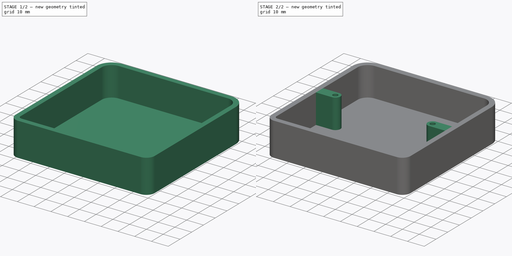
[diagram: build sequence overview — one tinted view per stage of 2, left to right]
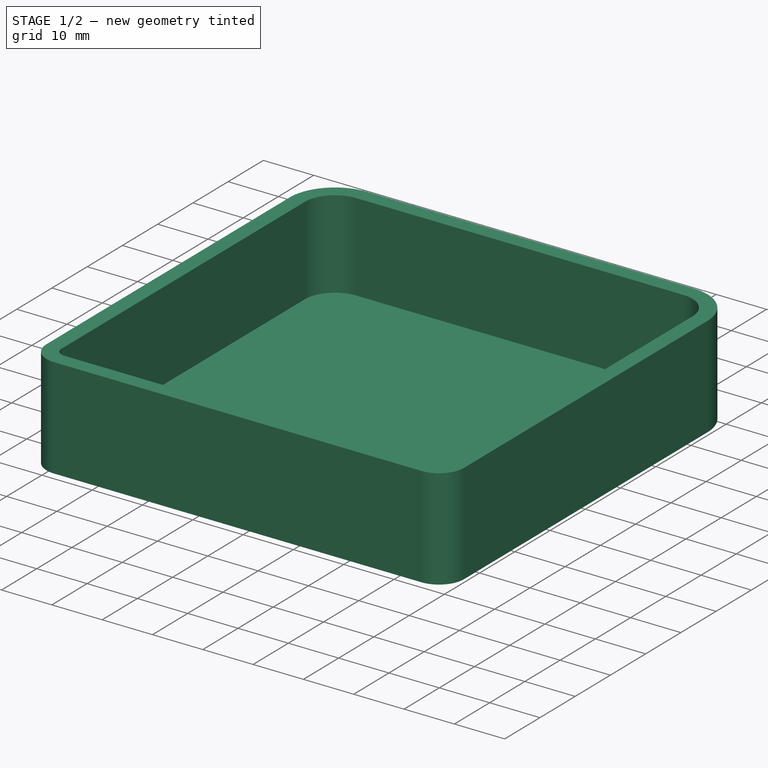
[diagram: stage 1 of 2 — iso view after this stage's code; geometry added in this stage tinted green]
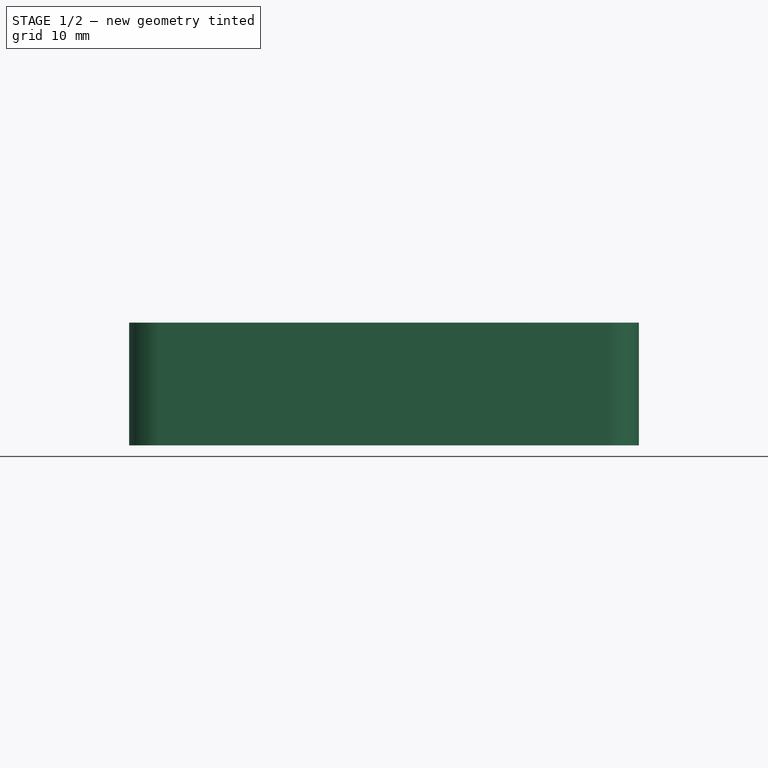
[diagram: stage 1 of 2 — front view after this stage's code; geometry added in this stage tinted green]
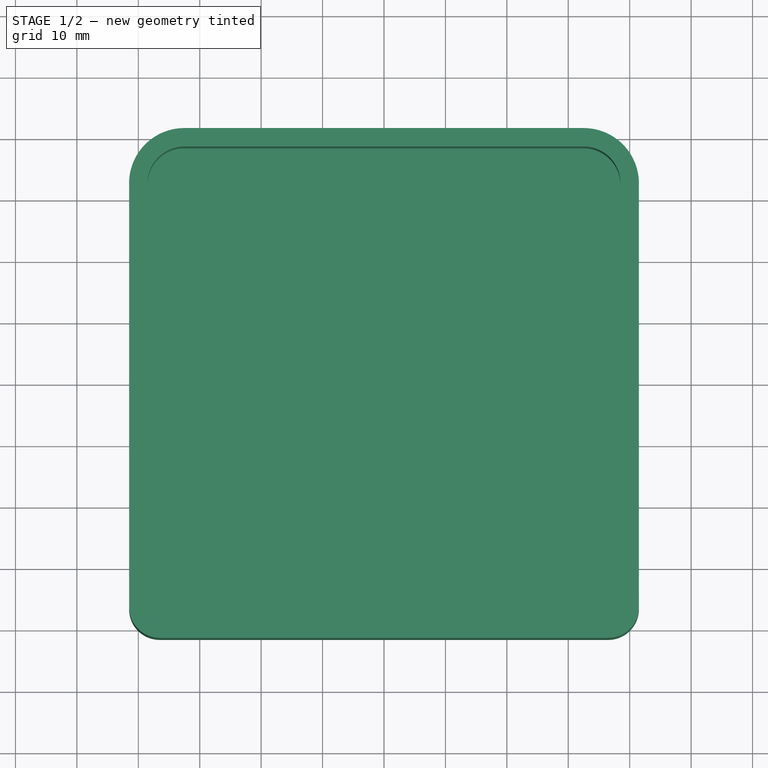
[diagram: stage 1 of 2 — top view after this stage's code; geometry added in this stage tinted green]
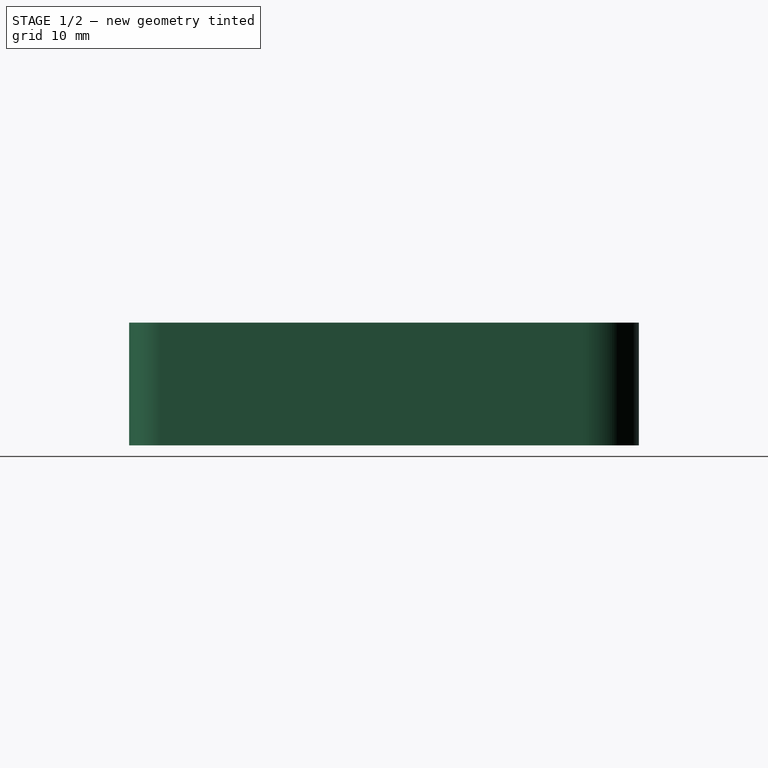
[diagram: stage 1 of 2 — right view after this stage's code; geometry added in this stage tinted green]
FCSTD DOCUMENT  (FreeCAD 1.1R)
Label: Cap
License: All rights reserved
LicenseURL: https://en.wikipedia.org/wiki/All_rights_reserved
objects: Sketcher::SketchObject×4, PartDesign::Pad×3, App::Point×2, PartDesign::Pocket×1, PartDesign::Body×1
note: 21 computed .brp shape members not serialized (recipe doc carries the construction recipe); baked Part::Feature solids carry a one-line shape summary decoded from their .brp

FEATURE [App::Point] Origin003
  Role = Origin
FEATURE [App::Point] Origin005
  Role = Origin
FEATURE [Sketcher::SketchObject] Sketch004
  ArcFitTolerance = 1e-06
  ExternalTypes = [0]
  FullyConstrained = true
  MakeInternals = false
  MapMode = 5
  sketch-geometry (12):
    g0: LineSegment StartX=-41.5 StartY=32.5 StartZ=0 EndX=-41.5 EndY=-36.5 EndZ=0
    g1: LineSegment StartX=-36.5 StartY=-41.5 StartZ=0 EndX=36.5 EndY=-41.5 EndZ=0
    g2: LineSegment StartX=41.5 StartY=-36.5 StartZ=0 EndX=41.5 EndY=32.5 EndZ=0
    g3: LineSegment StartX=32.5 StartY=41.5 StartZ=0 EndX=-32.5 EndY=41.5 EndZ=0
    g4: ArcOfCircle CenterX=-32.5 CenterY=32.5 CenterZ=0 NormalX=0 NormalY=0 NormalZ=1 AngleXU=0 Radius=9 StartAngle=1.5708 EndAngle=3.14159
    g5: GeomPoint [constr] X=-41.5 Y=41.5 Z=0
    g6: ArcOfCircle CenterX=32.5 CenterY=32.5 CenterZ=0 NormalX=0 NormalY=0 NormalZ=1 AngleXU=0 Radius=9 StartAngle=-1.377e-13 EndAngle=1.5708
    g7: GeomPoint [constr] X=41.5 Y=41.5 Z=0
    g8: ArcOfCircle CenterX=36.5 CenterY=-36.5 CenterZ=0 NormalX=0 NormalY=0 NormalZ=1 AngleXU=0 Radius=5 StartAngle=4.71239 EndAngle=6.28319
    g9: GeomPoint [constr] X=41.5 Y=-41.5 Z=0
    g10: ArcOfCircle CenterX=-36.5 CenterY=-36.5 CenterZ=0 NormalX=0 NormalY=0 NormalZ=1 AngleXU=0 Radius=5 StartAngle=3.14159 EndAngle=4.71239
    g11: GeomPoint [constr] X=-41.5 Y=-41.5 Z=0
  constraints (26):
    c: Vertical(g2)
    c: Horizontal(g3)
    c: Symmetric(g9,g11,g-2)
    c: Symmetric(g11,g5,g-1)
    c: DistanceY(g11,g5) = 83
    c: PointOnObject(g5,g0)
    c: PointOnObject(g5,g3)
    c: Tangent(g0,g4) = -1.5708
    c: Tangent(g3,g4) = -1.5708
    c: PointOnObject(g7,g2)
    c: PointOnObject(g7,g3)
    c: Tangent(g2,g6) = -1.5708
    c: Tangent(g3,g6) = -1.5708
    c: PointOnObject(g9,g1)
    c: PointOnObject(g9,g2)
    c: Tangent(g1,g8) = -1.5708
    c: Tangent(g2,g8) = -1.5708
    c: PointOnObject(g11,g0)
    c: PointOnObject(g11,g1)
    c: Tangent(g0,g10) = -1.5708
    c: Tangent(g1,g10) = -1.5708
    c: Distance(g2,g9) = 5
    c: DistanceX(g11,g9) = 83
    c: Horizontal(g10,g8)
    c: Distance(g2,g7) = 9
    c: Horizontal(g6,g4)
FEATURE [PartDesign::Pad] Pad001
  Direction = (0,0,1)
  Length = 2.5
  Length2 = 10
  Profile = -> Sketch004
  ReferenceAxis = -> Sketch004 [N_Axis]
  Refine = true
  SideType = 0
  Suppressed = false
  Type = 0
  Type2 = 0
FEATURE [Sketcher::SketchObject] Sketch
  ArcFitTolerance = 1e-06
  ExternalTypes = [0]
  FullyConstrained = true
  MakeInternals = false
  sketch-geometry (24):
    g0: LineSegment StartX=-41.5 StartY=32.5 StartZ=0 EndX=-41.5 EndY=-36.5 EndZ=0
    g1: LineSegment StartX=-36.5 StartY=-41.5 StartZ=0 EndX=36.5 EndY=-41.5 EndZ=0
    g2: LineSegment StartX=41.5 StartY=-36.5 StartZ=0 EndX=41.5 EndY=32.5 EndZ=0
    g3: LineSegment StartX=32.5 StartY=41.5 StartZ=0 EndX=-32.5 EndY=41.5 EndZ=0
    g4: ArcOfCircle CenterX=-32.5 CenterY=32.5 CenterZ=0 NormalX=0 NormalY=0 NormalZ=1 AngleXU=0 Radius=9 StartAngle=1.5708 EndAngle=3.14159
    g5: GeomPoint [constr] X=-41.5 Y=41.5 Z=0
    g6: ArcOfCircle CenterX=32.5 CenterY=32.5 CenterZ=0 NormalX=0 NormalY=0 NormalZ=1 AngleXU=0 Radius=9 StartAngle=-1.377e-13 EndAngle=1.5708
    g7: GeomPoint [constr] X=41.5 Y=41.5 Z=0
    g8: ArcOfCircle CenterX=36.5 CenterY=-36.5 CenterZ=0 NormalX=0 NormalY=0 NormalZ=1 AngleXU=0 Radius=5 StartAngle=4.71239 EndAngle=6.28319
    g9: GeomPoint [constr] X=41.5 Y=-41.5 Z=0
    g10: ArcOfCircle CenterX=-36.5 CenterY=-36.5 CenterZ=0 NormalX=0 NormalY=0 NormalZ=1 AngleXU=0 Radius=5 StartAngle=3.14159 EndAngle=4.71239
    g11: GeomPoint [constr] X=-41.5 Y=-41.5 Z=0
    g12: LineSegment StartX=-38.5 StartY=32.5 StartZ=0 EndX=-38.5 EndY=-36.5 EndZ=0
    g13: LineSegment StartX=-36.5 StartY=-38.5 StartZ=0 EndX=36.5 EndY=-38.5 EndZ=0
    g14: LineSegment StartX=38.5 StartY=-36.5 StartZ=0 EndX=38.5 EndY=32.5 EndZ=0
    g15: LineSegment StartX=32.5 StartY=38.5 StartZ=0 EndX=-32.5 EndY=38.5 EndZ=0
    g16: ArcOfCircle CenterX=-32.5 CenterY=32.5 CenterZ=0 NormalX=0 NormalY=0 NormalZ=1 AngleXU=0 Radius=6 StartAngle=1.5708 EndAngle=3.14159
    g17: GeomPoint [constr] X=-38.5 Y=38.5 Z=0
    g18: ArcOfCircle CenterX=32.5 CenterY=32.5 CenterZ=0 NormalX=0 NormalY=0 NormalZ=1 AngleXU=0 Radius=6 StartAngle=3e-16 EndAngle=1.5708
    g19: GeomPoint [constr] X=38.5 Y=38.5 Z=0
    g20: ArcOfCircle CenterX=36.5 CenterY=-36.5 CenterZ=0 NormalX=0 NormalY=0 NormalZ=1 AngleXU=0 Radius=2 StartAngle=4.71239 EndAngle=6.28319
    g21: GeomPoint [constr] X=38.5 Y=-38.5 Z=0
    g22: ArcOfCircle CenterX=-36.5 CenterY=-36.5 CenterZ=0 NormalX=0 NormalY=0 NormalZ=1 AngleXU=0 Radius=2 StartAngle=3.14159 EndAngle=4.71239
    g23: GeomPoint [constr] X=-38.5 Y=-38.5 Z=0
  constraints (52):
    c: Vertical(g2)
    c: Horizontal(g3)
    c: Symmetric(g9,g11,g-2)
    c: Symmetric(g11,g5,g-1)
    c: DistanceY(g11,g5) = 83
    c: PointOnObject(g5,g0)
    c: PointOnObject(g5,g3)
    c: Tangent(g0,g4) = -1.5708
    c: Tangent(g3,g4) = -1.5708
    c: PointOnObject(g7,g2)
    c: PointOnObject(g7,g3)
    c: Tangent(g2,g6) = -1.5708
    c: Tangent(g3,g6) = -1.5708
    c: PointOnObject(g9,g1)
    c: PointOnObject(g9,g2)
    c: Tangent(g1,g8) = -1.5708
    c: Tangent(g2,g8) = -1.5708
    c: PointOnObject(g11,g0)
    c: PointOnObject(g11,g1)
    c: Tangent(g0,g10) = -1.5708
    c: Tangent(g1,g10) = -1.5708
    c: Distance(g2,g9) = 5
    c: DistanceX(g11,g9) = 83
    c: Horizontal(g10,g8)
    c: Distance(g2,g7) = 9
    c: Horizontal(g6,g4)
    c: Vertical(g14)
    c: Horizontal(g15)
    c: Symmetric(g21,g23,g-2)
    c: Symmetric(g23,g17,g-1)
    c: DistanceY(g23,g17) = 77
    c: PointOnObject(g17,g12)
    c: PointOnObject(g17,g15)
    c: Tangent(g12,g16) = -1.5708
    c: Tangent(g15,g16) = -1.5708
    c: PointOnObject(g19,g14)
    c: PointOnObject(g19,g15)
    c: Tangent(g14,g18) = -1.5708
    c: Tangent(g15,g18) = -1.5708
    c: PointOnObject(g21,g13)
    c: PointOnObject(g21,g14)
    c: Tangent(g13,g20) = -1.5708
    c: Tangent(g14,g20) = -1.5708
    c: PointOnObject(g23,g12)
    c: PointOnObject(g23,g13)
    c: Tangent(g12,g22) = -1.5708
    c: Tangent(g13,g22) = -1.5708
    c: Distance(g14,g21) = 2
    c: DistanceX(g23,g21) = 77
    c: Horizontal(g22,g20)
    c: Distance(g14,g19) = 6
    c: Horizontal(g18,g16)
FEATURE [PartDesign::Pad] Pad
  BaseFeature = -> Pad001
  Direction = (0,0,1)
  Length = 20
  Length2 = 10
  Profile = -> Sketch
  ReferenceAxis = -> Sketch [N_Axis]
  Refine = true
  SideType = 0
  Suppressed = false
  Type = 0
  Type2 = 0
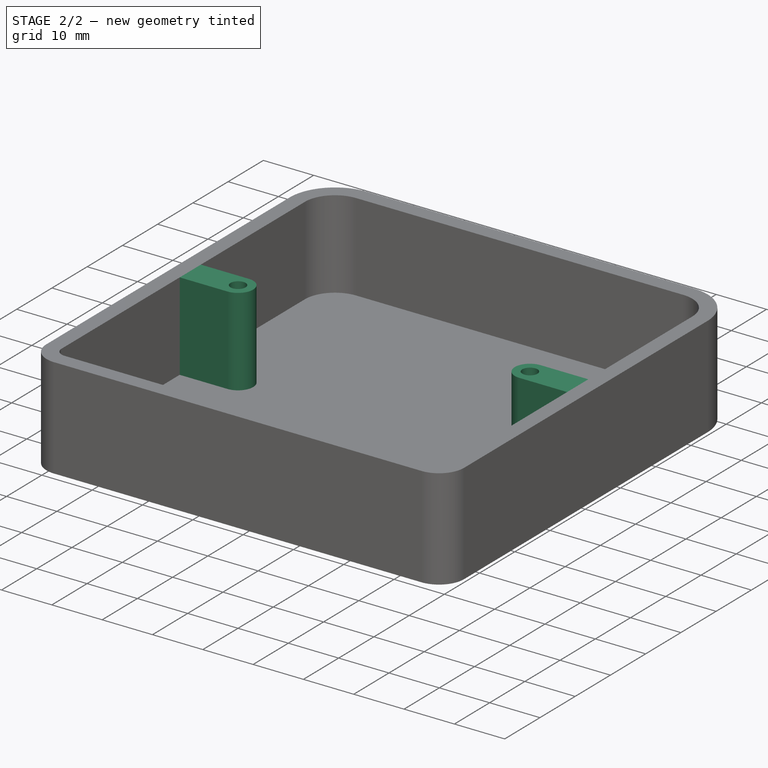
[diagram: stage 2 of 2 — iso view after this stage's code; geometry added in this stage tinted green]
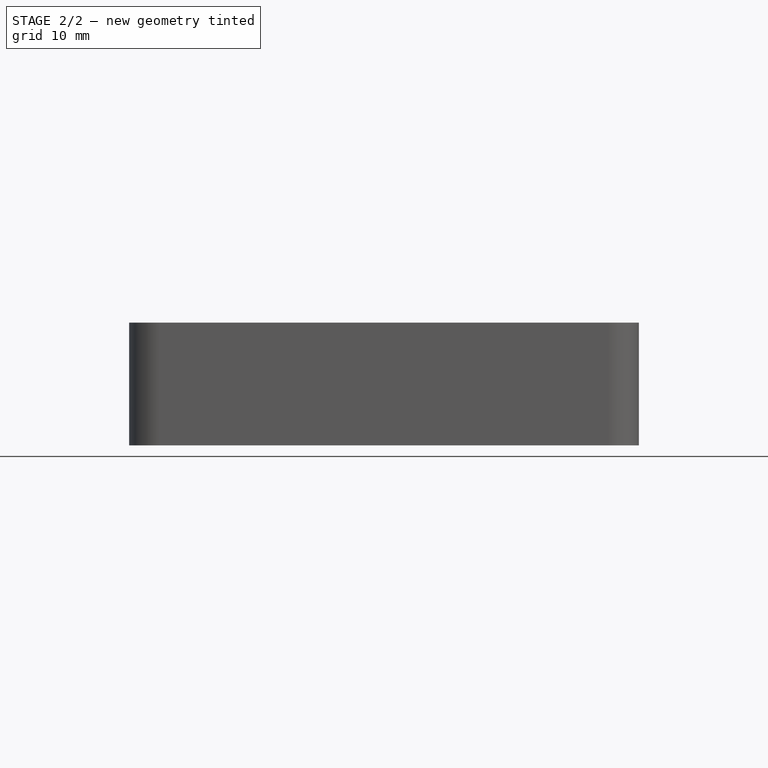
[diagram: stage 2 of 2 — front view after this stage's code; geometry added in this stage tinted green]
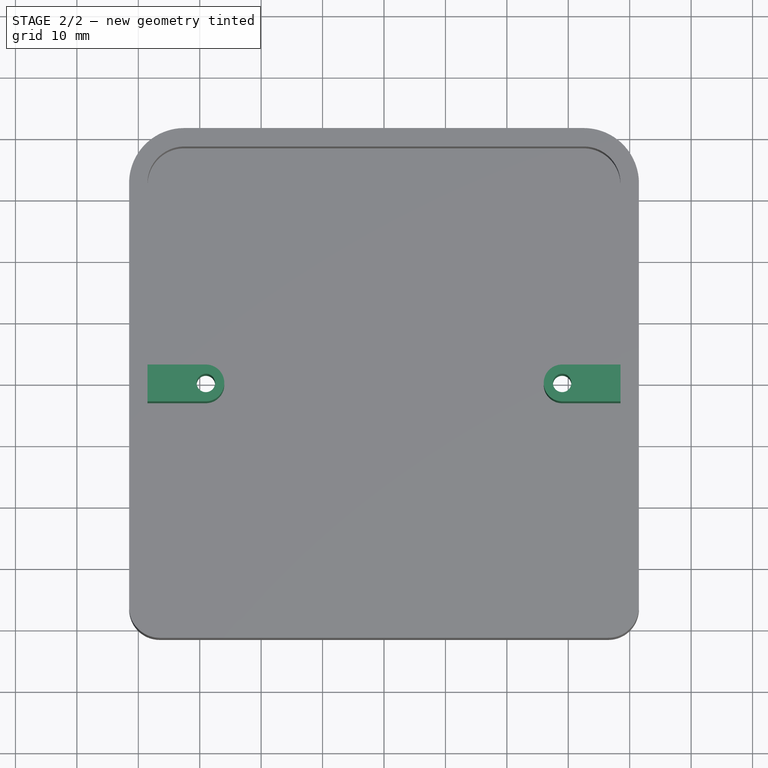
[diagram: stage 2 of 2 — top view after this stage's code; geometry added in this stage tinted green]
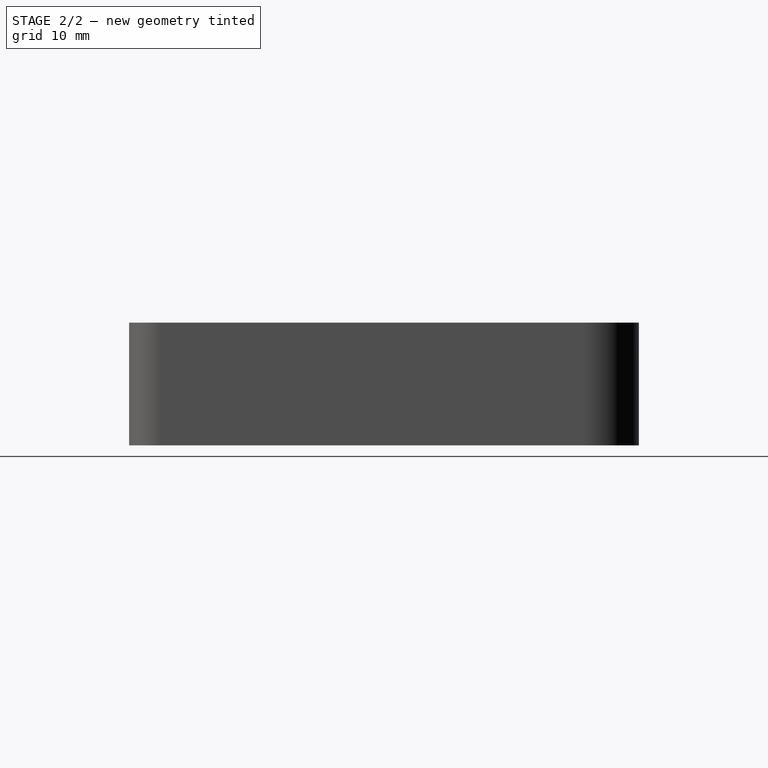
[diagram: stage 2 of 2 — right view after this stage's code; geometry added in this stage tinted green]
FEATURE [Sketcher::SketchObject] Sketch006
  ArcFitTolerance = 1e-06
  AttachmentSupport = -> [Pad]
  ExternalTypes = [0]
  FullyConstrained = true
  MakeInternals = false
  MapMode = 2
  sketch-geometry (8):
    g0: LineSegment StartX=-29 StartY=3 StartZ=0 EndX=-40 EndY=3 EndZ=0
    g1: LineSegment StartX=-40 StartY=3 StartZ=0 EndX=-40 EndY=-3 EndZ=0
    g2: LineSegment StartX=-40 StartY=-3 StartZ=0 EndX=-29 EndY=-3 EndZ=0
    g3: LineSegment StartX=29 StartY=3 StartZ=0 EndX=40 EndY=3 EndZ=0
    g4: LineSegment StartX=40 StartY=3 StartZ=0 EndX=40 EndY=-3 EndZ=0
    g5: LineSegment StartX=40 StartY=-3 StartZ=0 EndX=29 EndY=-3 EndZ=0
    g6: ArcOfCircle CenterX=-29 CenterY=0 CenterZ=0 NormalX=0 NormalY=0 NormalZ=1 AngleXU=0 Radius=3 StartAngle=4.71239 EndAngle=7.85398
    g7: ArcOfCircle CenterX=29 CenterY=0 CenterZ=0 NormalX=0 NormalY=0 NormalZ=1 AngleXU=0 Radius=3 StartAngle=1.5708 EndAngle=4.71239
  constraints (24):
    c: Horizontal(g0)
    c: Coincident(g0,g1)
    c: Vertical(g1)
    c: Coincident(g1,g2)
    c: Horizontal(g2)
    c: Horizontal(g3)
    c: Coincident(g3,g4)
    c: Coincident(g4,g5)
    c: PointOnObject(g6,g-1)
    c: Coincident(g6,g0)
    c: Coincident(g6,g2)
    c: Coincident(g7,g3)
    c: Coincident(g7,g5)
    c: Symmetric(g3,g0,g-2)
    c: Horizontal(g5)
    c: Perpendicular(g4,g5)
    c: Vertical(g0,g6)
    c: Vertical(g6,g2)
    c: Vertical(g3,g7)
    c: Vertical(g7,g5)
    c: Symmetric(g7,g6,g-2)
    c: DistanceX(g6,g7) = 58
    c: Distance(g1,g1) = 6
    c: DistanceX(g0,g3) = 80
FEATURE [PartDesign::Pad] Pad002
  BaseFeature = -> Pad
  Direction = (0,0,1)
  Length = 20
  Length2 = 10
  Profile = -> Sketch006
  ReferenceAxis = -> Sketch006 [N_Axis]
  Refine = true
  SideType = 0
  Suppressed = false
  Type = 0
  Type2 = 0
FEATURE [Sketcher::SketchObject] Sketch007
  ArcFitTolerance = 1e-06
  AttachmentSupport = -> [Pad002]
  ExternalTypes = [0]
  FullyConstrained = true
  MakeInternals = false
  MapMode = 2
  sketch-geometry (2):
    g0: Circle CenterX=-29 CenterY=0 CenterZ=0 NormalX=0 NormalY=0 NormalZ=1 AngleXU=0 Radius=1.75
    g1: Circle [constr] CenterX=29 CenterY=0 CenterZ=0 NormalX=0 NormalY=0 NormalZ=1 AngleXU=0 Radius=1.75
  constraints (5):
    c: PointOnObject(g0,g-1)
    c: DistanceX(g0,g1) = 58
    c: Diameter(g1) = 3.5
    c: Symmetric(g0,g1,g-2)
    c: Equal(g0,g1)
FEATURE [PartDesign::Pocket] Pocket
  BaseFeature = -> Pad002
  Direction = (1,1,1)
  Length = -23
  Length2 = 5
  Profile = -> Sketch007
  ReferenceAxis = -> Sketch007 [N_Axis]
  Refine = true
  SideType = 0
  Suppressed = false
  Type = 0
  Type2 = 0
FEATURE [PartDesign::Body] Body001
  AllowCompound = false
  Group = -> [Sketch004,Pad001,Sketch,Pad,Sketch006,Pad002,Sketch007,Pocket]
  Origin = -> Origin004
  Tip = -> Pocket
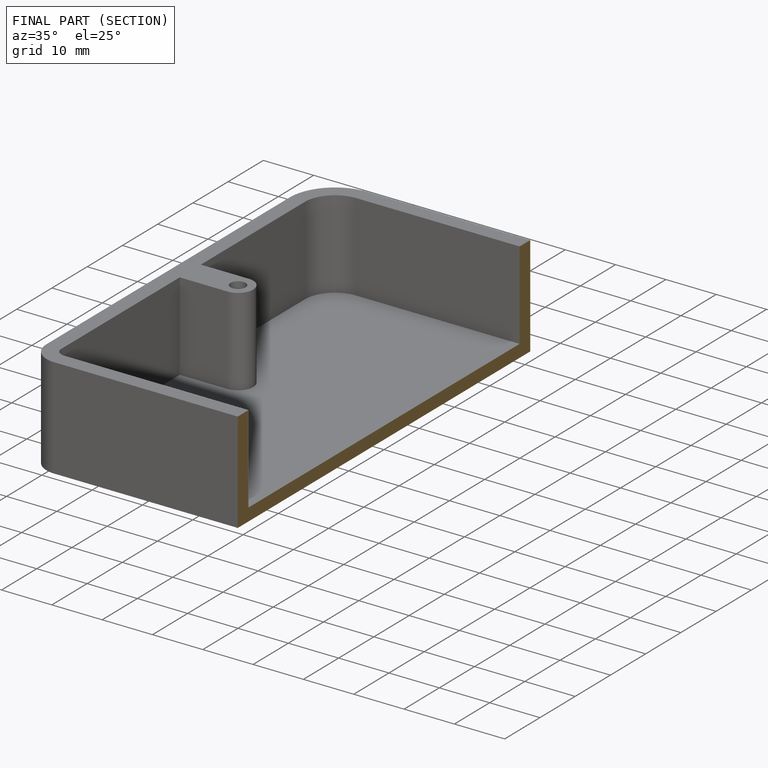
[diagram: finished part — half-section view (interior)]
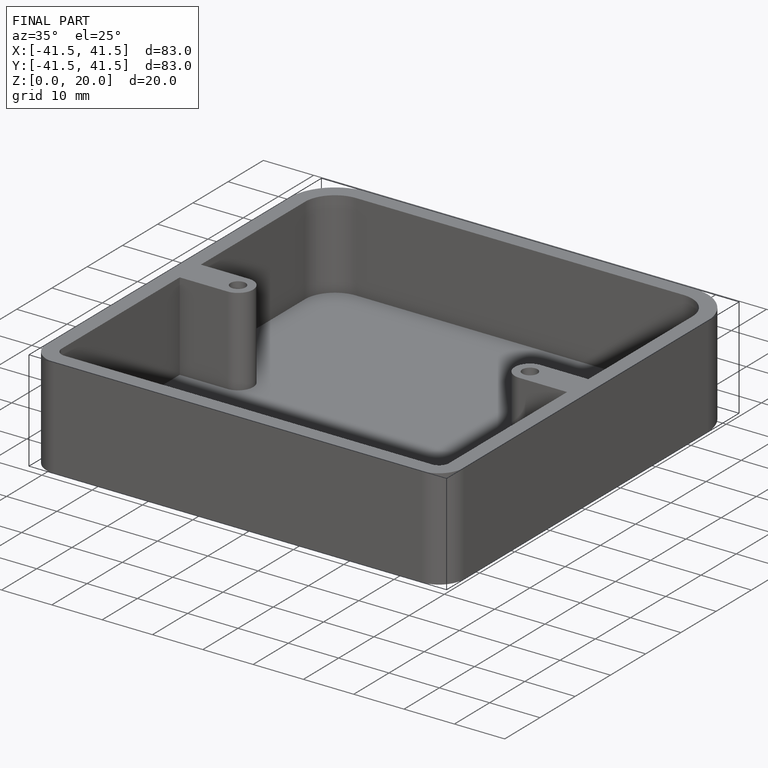
[diagram: finished part — iso view with bounding-box wireframe]
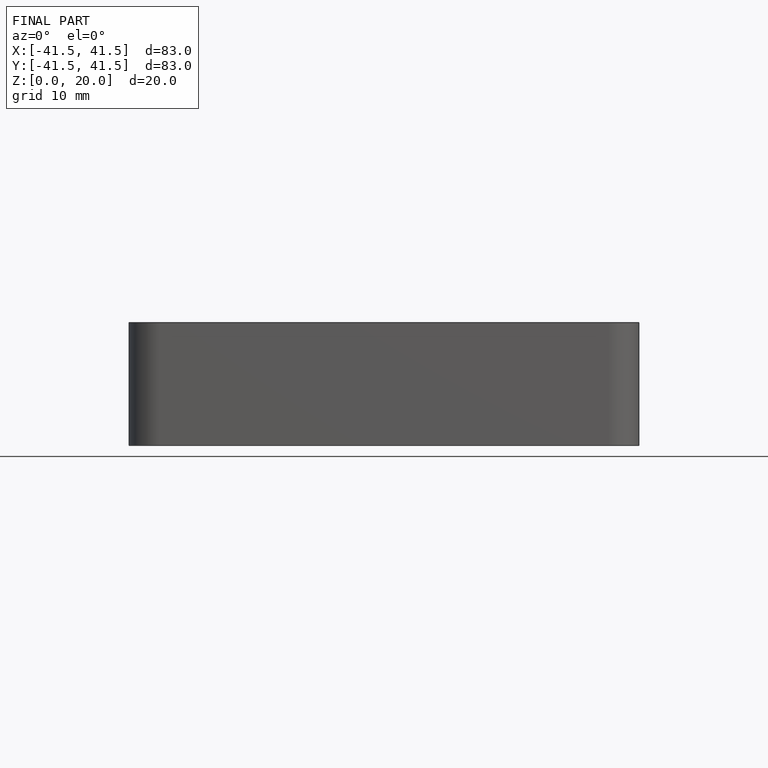
[diagram: finished part — front view with bounding-box wireframe]
